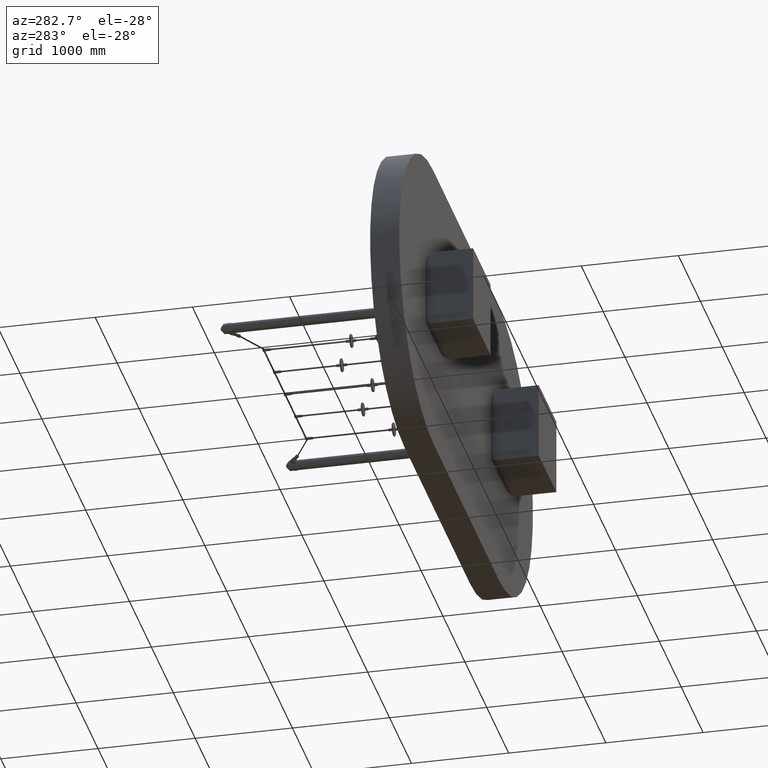
[diagram: clean part render]
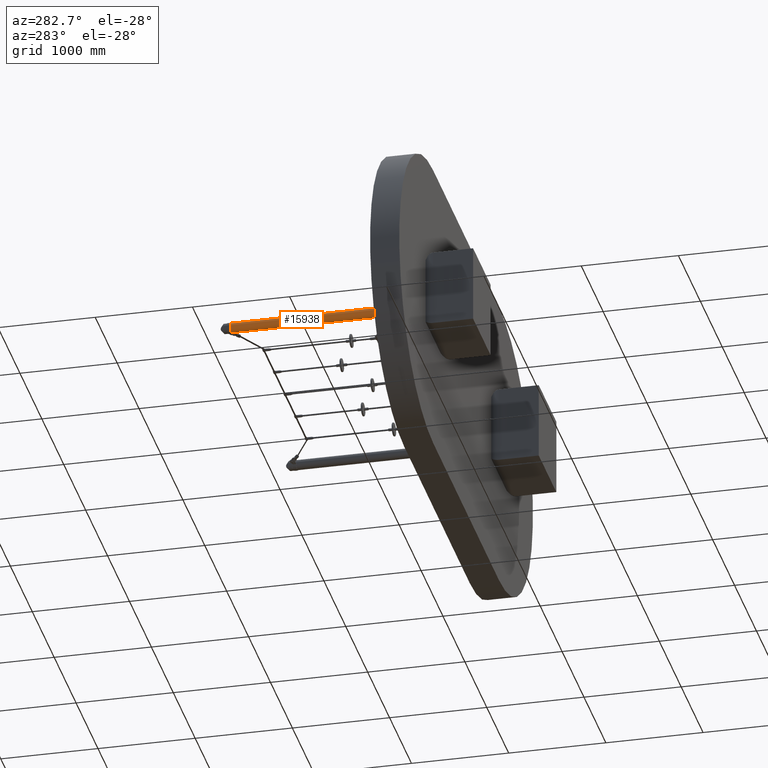
[diagram: same view with one face highlighted and labeled with its STEP entity id]
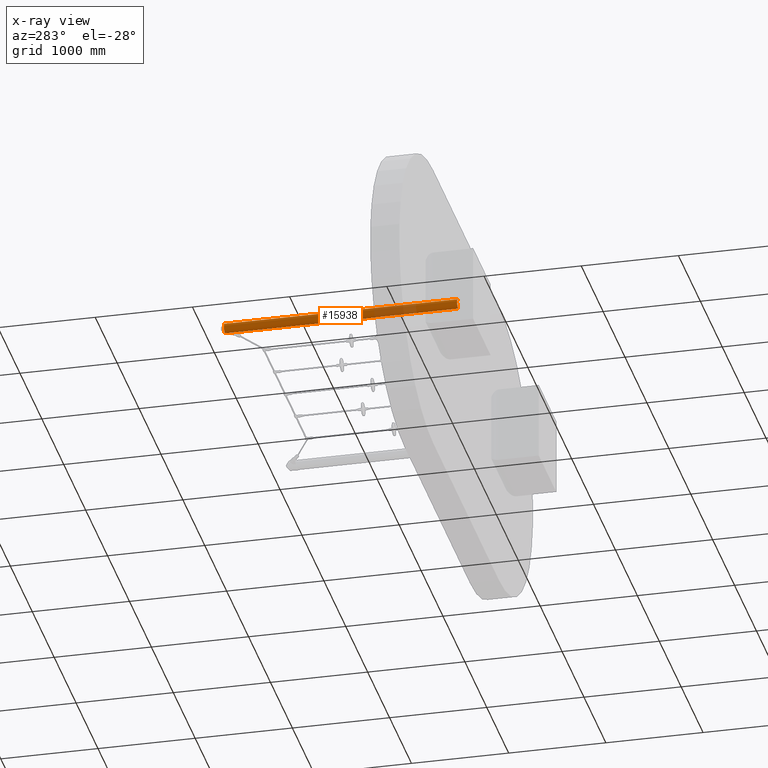
[diagram: x-ray of the same camera — body ghosted, the highlighted face saturated]
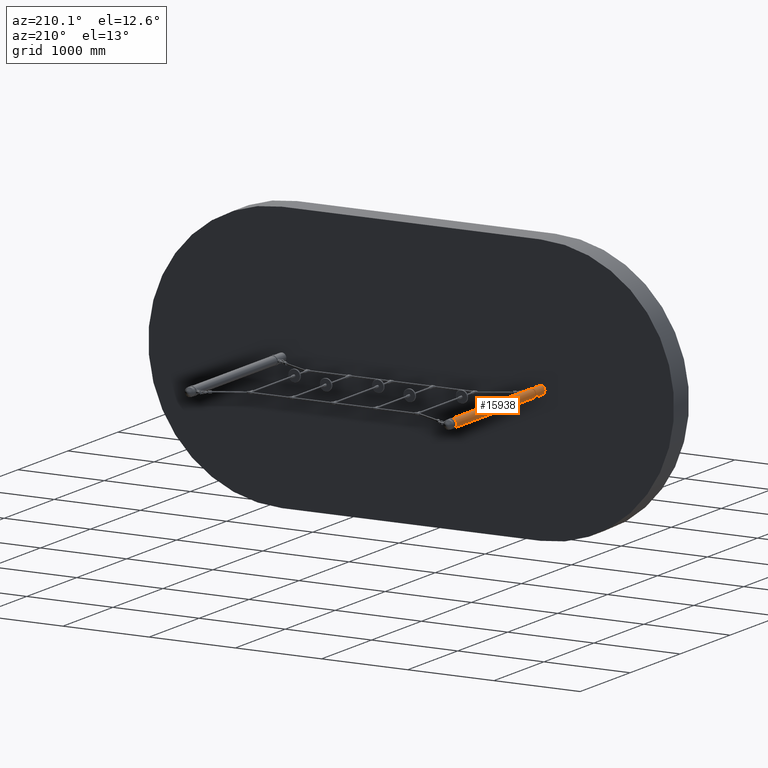
[diagram: same view with one face highlighted and labeled with its STEP entity id]
A machine part, auxiliary view. The second image highlights one B-rep face of the part: STEP entity #15938.
The next image is the same camera in x-ray: the body ghosted, the highlighted face saturated — about 18% of this face is hidden behind the body in this view.
A second angle (auxiliary view) of the same face is appended — the face is thin or edge-on in the first view.
In plain terms, the highlighted cylindrical surface (edge-blend (fillet) strip) has radius 51 mm, axis along (-0, -1, -0).
Its self-contained STEP definition (entity closure, byte-faithful):
#1483 = CIRCLE ( 'NONE', #6873, 51.00000000000000000 ) ;
#1696 = VECTOR ( 'NONE', #17745, 1000.000000000000000 ) ;
#2197 = ORIENTED_EDGE ( 'NONE', *, *, #13058, .T. ) ;
#2429 = CARTESIAN_POINT ( 'NONE',  ( 0.0000000000000000000, 2400.000000000000000, -51.00000000000000000 ) ) ;
#3530 = EDGE_LOOP ( 'NONE', ( #14443, #16682, #9944, #2197 ) ) ;
#3656 = CARTESIAN_POINT ( 'NONE',  ( 0.0000000000000000000, 2400.000000000000000, -51.00000000000000000 ) ) ;
#3691 = CARTESIAN_POINT ( 'NONE',  ( 6.245698675651500400E-015, 0.0000000000000000000, 51.00000000000000000 ) ) ;
#3694 = DIRECTION ( 'NONE',  ( -0.0000000000000000000, -1.000000000000000000, -0.0000000000000000000 ) ) ;
#4405 = AXIS2_PLACEMENT_3D ( 'NONE', #12462, #13828, #11083 ) ;
#5357 = CARTESIAN_POINT ( 'NONE',  ( 6.245698675651500400E-015, 2400.000000000000000, 51.00000000000000000 ) ) ;
#5821 = EDGE_CURVE ( 'NONE', #13081, #10581, #13064, .T. ) ;
#5916 = CYLINDRICAL_SURFACE ( 'NONE', #4405, 51.00000000000000000 ) ;
#6575 = VERTEX_POINT ( 'NONE', #8384 ) ;
#6818 = EDGE_CURVE ( 'NONE', #6952, #6575, #15018, .T. ) ;
#6843 = DIRECTION ( 'NONE',  ( 0.0000000000000000000, 1.000000000000000000, 0.0000000000000000000 ) ) ;
#6873 = AXIS2_PLACEMENT_3D ( 'NONE', #16143, #7866, #17499 ) ;
#6952 = VERTEX_POINT ( 'NONE', #2429 ) ;
#7632 = VECTOR ( 'NONE', #3694, 1000.000000000000000 ) ;
#7866 = DIRECTION ( 'NONE',  ( 0.0000000000000000000, 1.000000000000000000, 0.0000000000000000000 ) ) ;
#8384 = CARTESIAN_POINT ( 'NONE',  ( 0.0000000000000000000, 0.0000000000000000000, -51.00000000000000000 ) ) ;
#9944 = ORIENTED_EDGE ( 'NONE', *, *, #6818, .T. ) ;
#10581 = VERTEX_POINT ( 'NONE', #3691 ) ;
#10748 = AXIS2_PLACEMENT_3D ( 'NONE', #15130, #6843, #16507 ) ;
#11083 = DIRECTION ( 'NONE',  ( 0.0000000000000000000, 0.0000000000000000000, -1.000000000000000000 ) ) ;
#11399 = CIRCLE ( 'NONE', #10748, 51.00000000000000000 ) ;
#12462 = CARTESIAN_POINT ( 'NONE',  ( 0.0000000000000000000, 2400.000000000000000, 0.0000000000000000000 ) ) ;
#13058 = EDGE_CURVE ( 'NONE', #6575, #10581, #11399, .T. ) ;
#13064 = LINE ( 'NONE', #18104, #1696 ) ;
#13081 = VERTEX_POINT ( 'NONE', #5357 ) ;
#13407 = FACE_OUTER_BOUND ( 'NONE', #3530, .T. ) ;
#13828 = DIRECTION ( 'NONE',  ( -0.0000000000000000000, -1.000000000000000000, -0.0000000000000000000 ) ) ;
#14443 = ORIENTED_EDGE ( 'NONE', *, *, #5821, .F. ) ;
#14819 = EDGE_CURVE ( 'NONE', #6952, #13081, #1483, .T. ) ;
#15018 = LINE ( 'NONE', #3656, #7632 ) ;
#15130 = CARTESIAN_POINT ( 'NONE',  ( 0.0000000000000000000, 0.0000000000000000000, 0.0000000000000000000 ) ) ;
#15938 = ADVANCED_FACE ( 'NONE', ( #13407 ), #5916, .T. ) ;
#16143 = CARTESIAN_POINT ( 'NONE',  ( 0.0000000000000000000, 2400.000000000000000, 0.0000000000000000000 ) ) ;
#16507 = DIRECTION ( 'NONE',  ( 0.0000000000000000000, 0.0000000000000000000, 1.000000000000000000 ) ) ;
#16682 = ORIENTED_EDGE ( 'NONE', *, *, #14819, .F. ) ;
#17499 = DIRECTION ( 'NONE',  ( 0.0000000000000000000, 0.0000000000000000000, 1.000000000000000000 ) ) ;
#17745 = DIRECTION ( 'NONE',  ( -0.0000000000000000000, -1.000000000000000000, -0.0000000000000000000 ) ) ;
#18104 = CARTESIAN_POINT ( 'NONE',  ( 6.245698675651500400E-015, 2400.000000000000000, 51.00000000000000000 ) ) ;